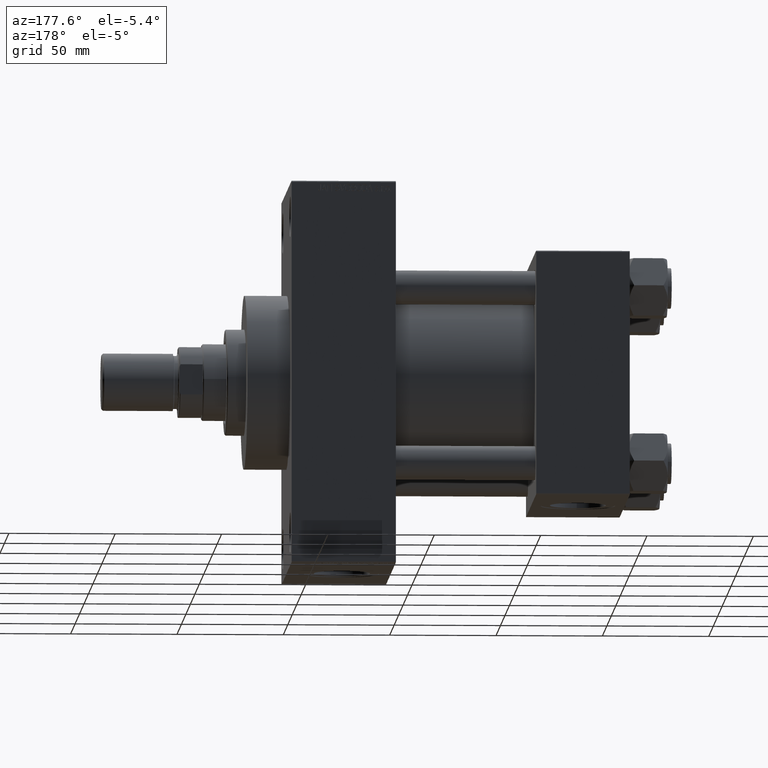
[diagram: clean part render]
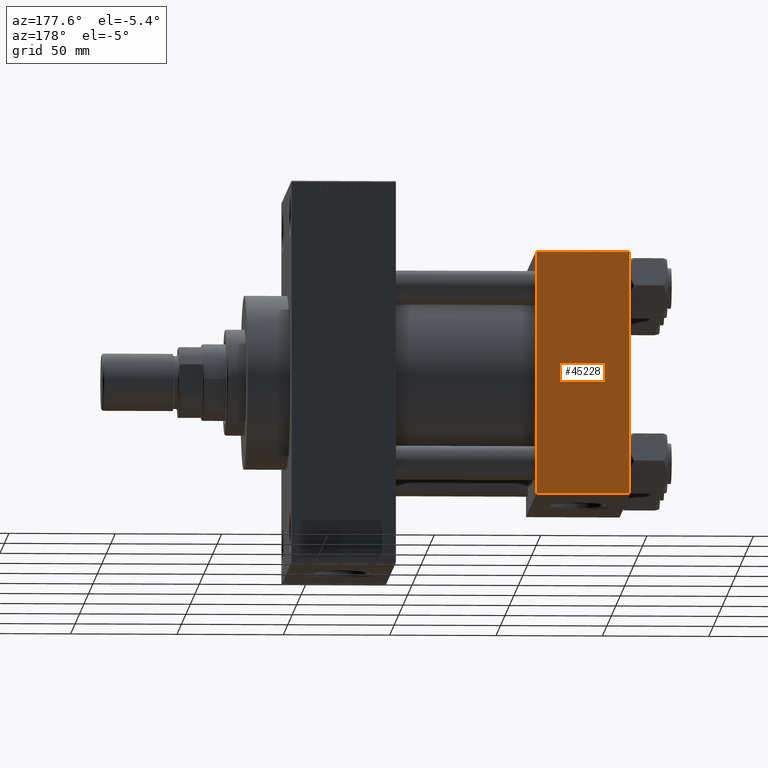
[diagram: same view with one face highlighted and labeled with its STEP entity id]
A machine part, auxiliary view. The second image highlights one B-rep face of the part: STEP entity #45228.
In plain terms, the highlighted planar face has unit normal (0, 1, 0).
Its self-contained STEP definition (entity closure, byte-faithful):
#2136 = CARTESIAN_POINT ( 'NONE',  ( 44.00000000000000000, 57.49999999999999289, 57.50000000000000711 ) ) ;
#4690 = ORIENTED_EDGE ( 'NONE', *, *, #21335, .T. ) ;
#5897 = EDGE_CURVE ( 'NONE', #30929, #49222, #7179, .T. ) ;
#6126 = ORIENTED_EDGE ( 'NONE', *, *, #22658, .F. ) ;
#7179 = LINE ( 'NONE', #42018, #10007 ) ;
#8809 = VECTOR ( 'NONE', #12369, 1000.000000000000000 ) ;
#9052 = VERTEX_POINT ( 'NONE', #27055 ) ;
#9239 = PLANE ( 'NONE',  #25377 ) ;
#9500 = DIRECTION ( 'NONE',  ( 1.000000000000000000, 0.000000000000000000, 0.000000000000000000 ) ) ;
#9747 = CARTESIAN_POINT ( 'NONE',  ( 44.00000000000000000, 57.49999999999999289, 57.00000000000003553 ) ) ;
#10007 = VECTOR ( 'NONE', #34198, 1000.000000000000000 ) ;
#12369 = DIRECTION ( 'NONE',  ( -1.000000000000000000, 0.000000000000000000, 0.000000000000000000 ) ) ;
#15566 = CARTESIAN_POINT ( 'NONE',  ( 0.000000000000000000, 57.49999999999999289, -57.00000000000000711 ) ) ;
#17529 = DIRECTION ( 'NONE',  ( -0.000000000000000000, 1.000000000000000000, 0.000000000000000000 ) ) ;
#17927 = LINE ( 'NONE', #44947, #38721 ) ;
#21335 = EDGE_CURVE ( 'NONE', #9052, #30929, #44070, .T. ) ;
#22564 = CARTESIAN_POINT ( 'NONE',  ( 44.00000000000000000, 57.49999999999999289, 57.00000000000003553 ) ) ;
#22658 = EDGE_CURVE ( 'NONE', #9052, #24058, #17927, .T. ) ;
#24058 = VERTEX_POINT ( 'NONE', #15566 ) ;
#25377 = AXIS2_PLACEMENT_3D ( 'NONE', #2136, #17529, #48335 ) ;
#26708 = CARTESIAN_POINT ( 'NONE',  ( 44.00000000000000000, 57.49999999999999289, -57.00000000000000711 ) ) ;
#27055 = CARTESIAN_POINT ( 'NONE',  ( 0.000000000000000000, 57.49999999999999289, 57.00000000000003553 ) ) ;
#28409 = FACE_OUTER_BOUND ( 'NONE', #30144, .T. ) ;
#28757 = EDGE_CURVE ( 'NONE', #49222, #24058, #31539, .T. ) ;
#30144 = EDGE_LOOP ( 'NONE', ( #41871, #35721, #6126, #4690 ) ) ;
#30637 = VECTOR ( 'NONE', #9500, 1000.000000000000000 ) ;
#30929 = VERTEX_POINT ( 'NONE', #22564 ) ;
#31539 = LINE ( 'NONE', #46935, #8809 ) ;
#34198 = DIRECTION ( 'NONE',  ( 0.000000000000000000, 0.000000000000000000, -1.000000000000000000 ) ) ;
#35721 = ORIENTED_EDGE ( 'NONE', *, *, #28757, .T. ) ;
#38721 = VECTOR ( 'NONE', #49732, 1000.000000000000000 ) ;
#41871 = ORIENTED_EDGE ( 'NONE', *, *, #5897, .T. ) ;
#42018 = CARTESIAN_POINT ( 'NONE',  ( 44.00000000000000000, 57.49999999999999289, 57.50000000000000711 ) ) ;
#44070 = LINE ( 'NONE', #9747, #30637 ) ;
#44947 = CARTESIAN_POINT ( 'NONE',  ( 0.000000000000000000, 57.49999999999999289, 57.50000000000000711 ) ) ;
#45228 = ADVANCED_FACE ( 'NONE', ( #28409 ), #9239, .T. ) ;
#46935 = CARTESIAN_POINT ( 'NONE',  ( 44.00000000000000000, 57.49999999999999289, -57.00000000000000711 ) ) ;
#48335 = DIRECTION ( 'NONE',  ( 0.000000000000000000, -0.000000000000000000, 1.000000000000000000 ) ) ;
#49222 = VERTEX_POINT ( 'NONE', #26708 ) ;
#49732 = DIRECTION ( 'NONE',  ( 0.000000000000000000, 0.000000000000000000, -1.000000000000000000 ) ) ;